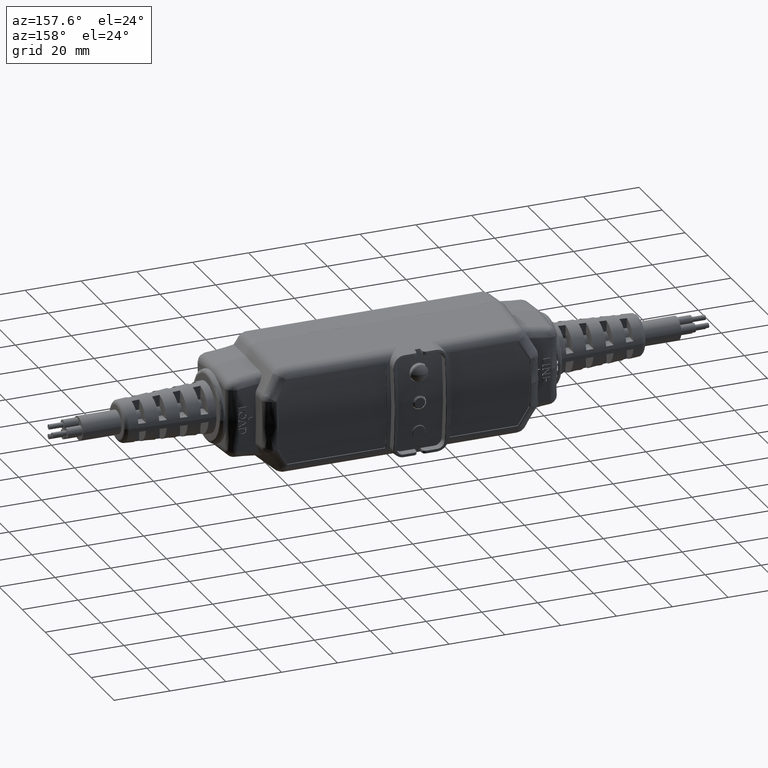
[diagram: clean part render]
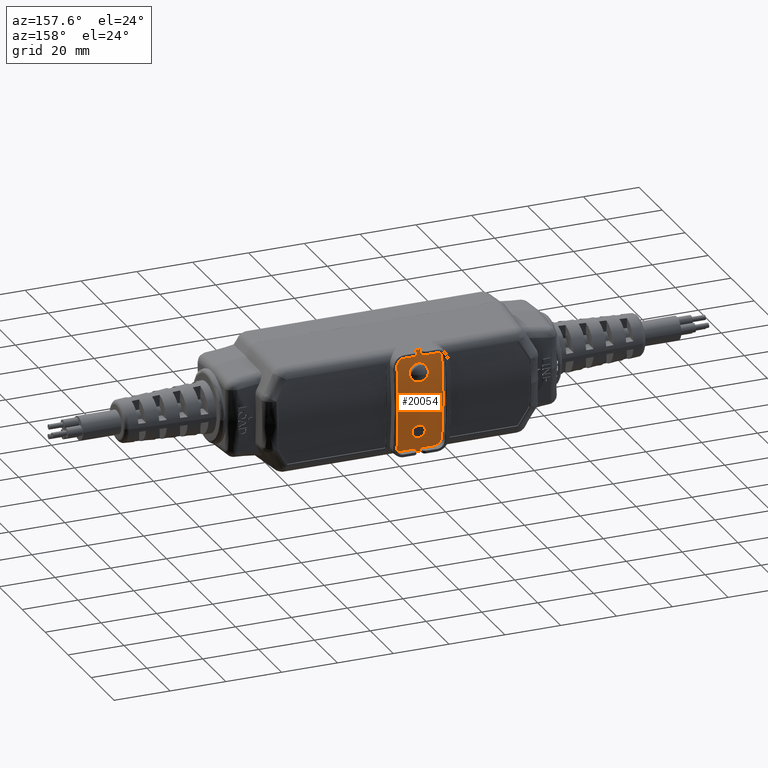
[diagram: same view with one face highlighted and labeled with its STEP entity id]
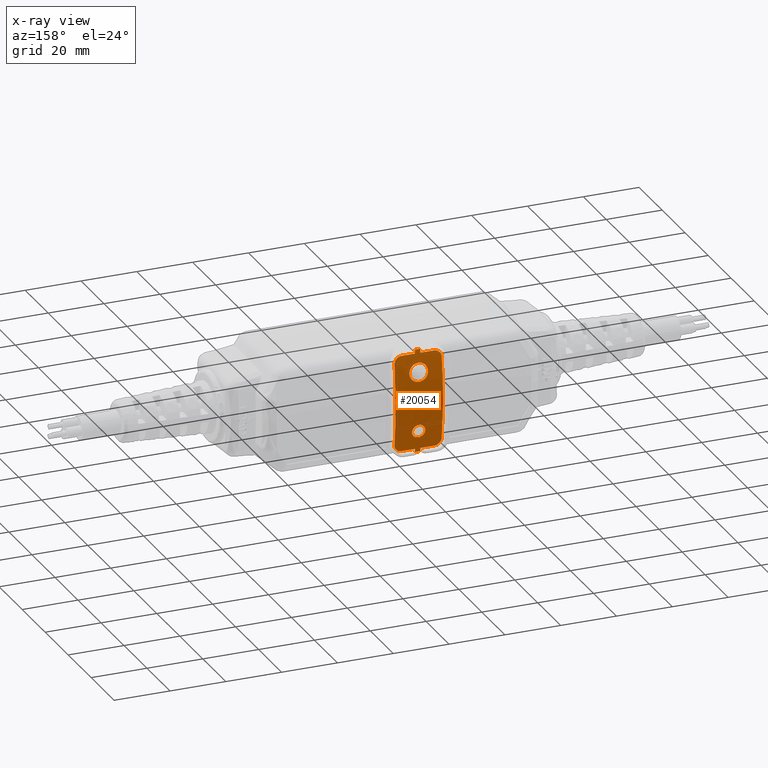
[diagram: x-ray of the same camera — body ghosted, the highlighted face saturated]
A machine part, auxiliary view. The second image highlights one B-rep face of the part: STEP entity #20054.
The next image is the same camera in x-ray: the body ghosted, the highlighted face saturated — about 0% of this face is hidden behind the body in this view.
In plain terms, the highlighted cylindrical surface (partial cylindrical patch) has radius 101.905 mm, axis along (1, 0, 0).
Its self-contained STEP definition (entity closure, byte-faithful):
#79 = CARTESIAN_POINT ( 'NONE',  ( -0.1154836130494746177, 0.9539396504030407398, -0.009960159207860776881 ) ) ;
#113 = CARTESIAN_POINT ( 'NONE',  ( -0.1173968639023321575, 0.9538952339751812781, -0.02215947921508732224 ) ) ;
#120 = CARTESIAN_POINT ( 'NONE',  ( -0.2519187773799420049, 0.8960431839282170241, -0.6792469370348928059 ) ) ;
#219 = CARTESIAN_POINT ( 'NONE',  ( -0.1926084021546554947, 0.9528838608003218358, 0.09251773454832948329 ) ) ;
#222 = VERTEX_POINT ( 'NONE', #17234 ) ;
#281 = VERTEX_POINT ( 'NONE', #8597 ) ;
#352 = CARTESIAN_POINT ( 'NONE',  ( -0.2576344120925420644, 0.9531506398265434665, 0.08017670585720117205 ) ) ;
#734 = CARTESIAN_POINT ( 'NONE',  ( -0.1665445977037008640, 0.9430173023247465647, 0.2959726419128856922 ) ) ;
#767 = CARTESIAN_POINT ( 'NONE',  ( 0.1132159286109416380, 0.9051163058353444146, 0.6240539421464571523 ) ) ;
#773 = CARTESIAN_POINT ( 'NONE',  ( -0.1711609754563061525, 0.8950936432270306664, -0.6847520753777464053 ) ) ;
#918 = CARTESIAN_POINT ( 'NONE',  ( -1.818259179320533825, 0.8960431839371066909, 0.6791432933898228219 ) ) ;
#1019 = VECTOR ( 'NONE', #6527, 39.37007874015748143 ) ;
#1029 = CARTESIAN_POINT ( 'NONE',  ( -0.4536931557577089658, 0.8960431839371065799, 0.6791432933898224888 ) ) ;
#1061 =( BOUNDED_CURVE ( )  B_SPLINE_CURVE ( 3, ( #17826, #6438, #11424, #4477 ),
 .UNSPECIFIED., .F., .T. ) 
 B_SPLINE_CURVE_WITH_KNOTS ( ( 4, 4 ),
 ( 3.313204749984747455, 3.324547274764896088 ),
 .UNSPECIFIED. ) 
 CURVE ( )  GEOMETRIC_REPRESENTATION_ITEM ( )  RATIONAL_B_SPLINE_CURVE ( ( 1.000000000000000000, 0.9999892789563695761, 0.9999892789563695761, 1.000000000000000000 ) ) 
 REPRESENTATION_ITEM ( '' )  );
#1073 = EDGE_LOOP ( 'NONE', ( #7870, #10032, #27421, #22953, #2247, #15036, #5419, #8390, #1538, #11323, #20646, #27460, #24671, #23181, #5750, #20337, #29905, #14526, #21155, #1989, #19933, #20483, #3428, #12738 ) ) ;
#1121 = CARTESIAN_POINT ( 'NONE',  ( -0.5410280097463324722, 0.9098673076678530647, -0.5933196936230159535 ) ) ;
#1191 = CARTESIAN_POINT ( 'NONE',  ( -0.2523335650721976742, 0.8960431839371066909, 0.6791432933898228219 ) ) ;
#1321 = CARTESIAN_POINT ( 'NONE',  ( -0.5410782126260693659, 0.9108252356782196024, 0.5866612514183660032 ) ) ;
#1337 = CARTESIAN_POINT ( 'NONE',  ( -0.3221190795961089148, 0.9245128741691092111, 0.4851324476555685661 ) ) ;
#1432 = CARTESIAN_POINT ( 'NONE',  ( -0.2659139072709787999, 0.9390403338658158683, -0.3456522934968553895 ) ) ;
#1461 = CARTESIAN_POINT ( 'NONE',  ( -0.2462880920562035836, 0.8950186068952701302, 0.6850813747908819362 ) ) ;
#1510 = EDGE_CURVE ( 'NONE', #26174, #21221, #18592, .T. ) ;
#1517 = EDGE_CURVE ( 'NONE', #15988, #25403, #24811, .T. ) ;
#1520 = CARTESIAN_POINT ( 'NONE',  ( -0.1711588021752691036, 0.8951351118990757971, 0.6844091667360099329 ) ) ;
#1538 = ORIENTED_EDGE ( 'NONE', *, *, #18887, .T. ) ;
#1799 = CARTESIAN_POINT ( 'NONE',  ( -0.1963391292436384439, 0.9210374646214920524, -0.5129099145910159807 ) ) ;
#1854 = VERTEX_POINT ( 'NONE', #2379 ) ;
#1989 = ORIENTED_EDGE ( 'NONE', *, *, #17952, .T. ) ;
#2116 = CARTESIAN_POINT ( 'NONE',  ( -0.2831276335409608769, 0.9254995162533091735, -0.4770407565800235949 ) ) ;
#2132 = CARTESIAN_POINT ( 'NONE',  ( -0.2458675061276717477, 0.8869933493040180750, -0.7299777425134753583 ) ) ;
#2177 = LINE ( 'NONE', #18081, #1019 ) ;
#2180 = CARTESIAN_POINT ( 'NONE',  ( -0.2767406377891598046, 0.9534307615286918836, 0.06478296091902921439 ) ) ;
#2236 = EDGE_CURVE ( 'NONE', #24272, #21424, #26165, .T. ) ;
#2247 = ORIENTED_EDGE ( 'NONE', *, *, #2236, .T. ) ;
#2258 = CARTESIAN_POINT ( 'NONE',  ( 0.1101344957712290101, 0.9042230165544270504, -0.6297986501896400968 ) ) ;
#2364 = CARTESIAN_POINT ( 'NONE',  ( -0.1763367240189061824, 0.9529826185358073465, -0.08825314356295890783 ) ) ;
#2379 = CARTESIAN_POINT ( 'NONE',  ( -0.1715857657125474389, 0.8869851289361383451, 0.7299185262661732621 ) ) ;
#2508 = VERTEX_POINT ( 'NONE', #10264 ) ;
#2513 = CARTESIAN_POINT ( 'NONE',  ( -0.1597458418419677728, 0.9531515460445185717, -0.08023502554024246336 ) ) ;
#2623 = CARTESIAN_POINT ( 'NONE',  ( -0.1170558476737795506, 0.9539030541514755823, 0.02059125206386703752 ) ) ;
#2937 = EDGE_CURVE ( 'NONE', #10393, #1854, #10969, .T. ) ;
#3022 = CARTESIAN_POINT ( 'NONE',  ( 0.09853809374190866666, 0.9016653271287193849, 0.6455756272855751599 ) ) ;
#3074 = CARTESIAN_POINT ( 'NONE',  ( -0.4727617166357491740, 0.8969127007127838391, -0.6741699997745085327 ) ) ;
#3085 = B_SPLINE_CURVE_WITH_KNOTS ( 'NONE', 3,
 ( #13989, #25661, #16248, #9616, #7326, #22935, #4894, #9464, #27656, #25821, #23369, #9173, #11558, #12020, #9009, #4750, #25220, #4604, #14280, #2364, #6875, #2513, #13840, #11725, #25508, #6727, #23074, #21249, #20954, #113, #18581, #23511 ),
 .UNSPECIFIED., .F., .F.,
 ( 4, 2, 2, 2, 2, 2, 2, 2, 2, 2, 2, 2, 2, 2, 2, 4 ),
 ( 0.000000000000000000, 0.0004653342316337972400, 0.0009306684632675944801, 0.001396002694901391557, 0.001861336926535188960, 0.002326671158168986363, 0.002792005389802783115, 0.003722673853070377053, 0.004188008084704174239, 0.004653342316337971858, 0.005118676547971768610, 0.005584010779605565362, 0.006049345011239362115, 0.006514679242873158867, 0.006980013474506955619, 0.007445347706140750636 ),
 .UNSPECIFIED. ) ;
#3123 = CARTESIAN_POINT ( 'NONE',  ( 0.1236754247445551735, 0.9117833399743843215, 0.5801052465378464529 ) ) ;
#3134 = CARTESIAN_POINT ( 'NONE',  ( -0.2257054483843428383, 0.9434467597720936904, 0.2900956803702320896 ) ) ;
#3168 = CARTESIAN_POINT ( 'NONE',  ( -0.1671084081286382250, 0.8959856229538940564, -0.6795819564820836378 ) ) ;
#3228 = CARTESIAN_POINT ( 'NONE',  ( -0.2462880920562035836, 0.8950186068952701302, 0.6850813747908819362 ) ) ;
#3267 = CARTESIAN_POINT ( 'NONE',  ( -0.1101312319667913098, 0.9400419601387237645, 0.3338001613084865538 ) ) ;
#3286 = VERTEX_POINT ( 'NONE', #22037 ) ;
#3304 = CARTESIAN_POINT ( 'NONE',  ( -0.1708028641598369757, 0.8953621260020852013, 0.6830963840579133972 ) ) ;
#3367 = LINE ( 'NONE', #9774, #5180 ) ;
#3395 = CARTESIAN_POINT ( 'NONE',  ( -0.2462880920557335707, 0.8950186068862996391, -0.6851850184359560281 ) ) ;
#3428 = ORIENTED_EDGE ( 'NONE', *, *, #17996, .T. ) ;
#3503 = CARTESIAN_POINT ( 'NONE',  ( -0.4906603366391942278, 0.8982718039977389823, -0.6661523811603804468 ) ) ;
#3549 = CARTESIAN_POINT ( 'NONE',  ( -0.5377494542356833218, 0.9079551004208802345, 0.6057562804194009942 ) ) ;
#3557 = CARTESIAN_POINT ( 'NONE',  ( -0.3358938742643788333, 0.9354014729419901641, 0.3856356985324602693 ) ) ;
#3571 = CARTESIAN_POINT ( 'NONE',  ( -0.1714408615519325274, 0.8897530983789124770, 0.7149584421105604770 ) ) ;
#3632 = CARTESIAN_POINT ( 'NONE',  ( -0.5067251030119757083, 0.9001679753405952278, -0.6547966033339280845 ) ) ;
#3650 = CARTESIAN_POINT ( 'NONE',  ( -0.1342445994597145642, 0.9375049821631987745, -0.3629923959223150254 ) ) ;
#3655 = FACE_BOUND ( 'NONE', #28659, .T. ) ;
#3709 = ORIENTED_EDGE ( 'NONE', *, *, #20545, .F. ) ;
#3856 = CARTESIAN_POINT ( 'NONE',  ( -0.5202818002771404382, 0.9025009735049854820, 0.6404358871883351068 ) ) ;
#3874 = CARTESIAN_POINT ( 'NONE',  ( -0.3392942749387863888, 0.9310124494228770864, 0.4284489150401615820 ) ) ;
#4010 = B_SPLINE_CURVE_WITH_KNOTS ( 'NONE', 3,
 ( #12259, #11961, #16954, #3168, #21635, #18811, #9558, #14518, #12401, #21497, #23462, #7858, #25901, #7413, #773, #9995 ),
 .UNSPECIFIED., .F., .F.,
 ( 4, 3, 3, 3, 3, 4 ),
 ( 5.204170427930421283E-18, 5.125242744472898192E-05, 0.0001024841627550694619, 0.0001540218007400006813, 0.0002059182782606578993, 0.0002391245057646051737 ),
 .UNSPECIFIED. ) ;
#4031 = CARTESIAN_POINT ( 'NONE',  ( -0.2458675061276717477, 0.8869933493040180750, -0.7299777425134753583 ) ) ;
#4046 = CARTESIAN_POINT ( 'NONE',  ( -0.2791870348293674642, 0.9249213646252359977, -0.4818369913283561679 ) ) ;
#4088 = CARTESIAN_POINT ( 'NONE',  ( -0.2458672342874492212, 0.8869851289361383451, 0.7299185262661732621 ) ) ;
#4191 = CARTESIAN_POINT ( 'NONE',  ( -0.2662604973767637162, 0.9233445082338710419, -0.4947558402851079951 ) ) ;
#4195 = CARTESIAN_POINT ( 'NONE',  ( 0.07333268905540553384, 0.8982834780347658254, -0.6660831880158553098 ) ) ;
#4343 = CARTESIAN_POINT ( 'NONE',  ( -0.1915705656434956439, 0.9161313295368385123, 0.5495340034247787608 ) ) ;
#4351 = CARTESIAN_POINT ( 'NONE',  ( -0.2899194916686552159, 0.9267029577303121934, -0.4668805513599915136 ) ) ;
#4426 = CARTESIAN_POINT ( 'NONE',  ( -0.2049048096649276063, 0.9528533019814567906, 0.09383247143433832982 ) ) ;
#4477 = CARTESIAN_POINT ( 'NONE',  ( -0.2458675061276716645, 0.8869933493040180750, 0.7298740989201616403 ) ) ;
#4524 = CARTESIAN_POINT ( 'NONE',  ( -0.2458672342874493044, 0.8869851289361383451, -0.7300221698594887565 ) ) ;
#4604 = CARTESIAN_POINT ( 'NONE',  ( -0.1941192482729313662, 0.9528781406896782435, -0.09286822871559809178 ) ) ;
#4750 = CARTESIAN_POINT ( 'NONE',  ( -0.2125705085255152060, 0.9528534261247358916, -0.09393074041920219941 ) ) ;
#4825 = EDGE_CURVE ( 'NONE', #26120, #9846, #3085, .T. ) ;
#4861 = CARTESIAN_POINT ( 'NONE',  ( -0.2467860716767581453, 0.9530330597294728312, 0.08585438928384410417 ) ) ;
#4894 = CARTESIAN_POINT ( 'NONE',  ( -0.2946082307376566845, 0.9537743430229623787, -0.03818337036254906142 ) ) ;
#5112 = CARTESIAN_POINT ( 'NONE',  ( 0.03612768280966051349, 0.8961541860935122727, 0.6784979590845440223 ) ) ;
#5180 = VECTOR ( 'NONE', #14733, 39.37007874015748143 ) ;
#5236 = CARTESIAN_POINT ( 'NONE',  ( -0.3126152718288996990, 0.9394975336576847358, 0.3402770625234010082 ) ) ;
#5271 = CARTESIAN_POINT ( 'NONE',  ( 0.08410953624006563267, 0.8994740667084760721, 0.6588680807179038146 ) ) ;
#5419 = ORIENTED_EDGE ( 'NONE', *, *, #27501, .T. ) ;
#5504 = CARTESIAN_POINT ( 'NONE',  ( -0.5411284247445529161, 0.9117833399743843215, 0.5801052465378464529 ) ) ;
#5615 = CARTESIAN_POINT ( 'NONE',  ( -0.2330277945348349367, 0.9404107222768419705, -0.3294032641567825603 ) ) ;
#5621 = FACE_BOUND ( 'NONE', #6140, .T. ) ;
#5663 = CARTESIAN_POINT ( 'NONE',  ( -0.5306908917545770654, 0.9051222063155310860, 0.6240168948053265163 ) ) ;
#5671 = CARTESIAN_POINT ( 'NONE',  ( -0.08228940805898961319, 0.9353318618082187008, 0.3861230101145399773 ) ) ;
#5689 = CARTESIAN_POINT ( 'NONE',  ( -0.1715857280873663848, 0.8869878691831974971, -0.7300073605377527253 ) ) ;
#5715 = CARTESIAN_POINT ( 'NONE',  ( -0.1651194349277994022, 0.8960431839371066909, 0.6791432933898228219 ) ) ;
#5750 = ORIENTED_EDGE ( 'NONE', *, *, #21171, .T. ) ;
#5829 = CARTESIAN_POINT ( 'NONE',  ( -0.3071120291879399500, 0.9400611482873536540, 0.3335689852884480833 ) ) ;
#5934 = CARTESIAN_POINT ( 'NONE',  ( -0.1844383466892329237, 0.9404109884033490241, -0.3294000280388857949 ) ) ;
#5961 = CARTESIAN_POINT ( 'NONE',  ( -0.2462920245441604650, 0.8950936432359954953, 0.6846484317326728686 ) ) ;
#6024 = CARTESIAN_POINT ( 'NONE',  ( -0.1655342226195897215, 0.8960431839371106877, 0.6791432933898093882 ) ) ;
#6102 = VERTEX_POINT ( 'NONE', #4031 ) ;
#6140 = EDGE_LOOP ( 'NONE', ( #26911, #20240 ) ) ;
#6146 = CARTESIAN_POINT ( 'NONE',  ( -0.2998170978688118327, 0.9292608746291112221, -0.4446186739958048473 ) ) ;
#6253 = VERTEX_POINT ( 'NONE', #23395 ) ;
#6271 = CARTESIAN_POINT ( 'NONE',  ( -0.2462941978242584595, 0.8951351118901144099, -0.6845128103810835807 ) ) ;
#6303 = CARTESIAN_POINT ( 'NONE',  ( -0.1181575633173396894, 0.9292879342295562450, -0.4442718927964963704 ) ) ;
#6438 = CARTESIAN_POINT ( 'NONE',  ( -0.2461523352606320159, 0.8924282129226828175, 0.7000273739908338122 ) ) ;
#6451 = CARTESIAN_POINT ( 'NONE',  ( -0.3261382649297429048, 0.9254268064620915224, 0.4775817452492040482 ) ) ;
#6464 = CARTESIAN_POINT ( 'NONE',  ( 0.1229277247758765457, 0.9098676199553984434, -0.5932041477088827452 ) ) ;
#6527 = DIRECTION ( 'NONE',  ( -1.000000000000000000, -6.668185433380451414E-18, -1.387778780781445367E-17 ) ) ;
#6550 = CARTESIAN_POINT ( 'NONE',  ( -0.1711649079437941035, 0.8950186068952701302, 0.6850813747908819362 ) ) ;
#6607 = CARTESIAN_POINT ( 'NONE',  ( -0.1711649079442644217, 0.8950186068862996391, -0.6851850184359560281 ) ) ;
#6615 = CARTESIAN_POINT ( 'NONE',  ( 0.1202964542352730343, 0.9079551004129540193, -0.6058599240646115325 ) ) ;
#6622 = CARTESIAN_POINT ( 'NONE',  ( -0.1715854938723260226, 0.8869933493040180750, -0.7299777425134769127 ) ) ;
#6700 = CARTESIAN_POINT ( 'NONE',  ( -1.818259179320535823, -3.058048114390085725, -5.182179665741830805E-05 ) ) ;
#6727 = CARTESIAN_POINT ( 'NONE',  ( -0.1328066164169856567, 0.9535725949679588753, -0.05541685599204736884 ) ) ;
#6757 = CARTESIAN_POINT ( 'NONE',  ( -0.08482735254520680501, 0.9272752221838239661, 0.4619050920785663372 ) ) ;
#6765 = CARTESIAN_POINT ( 'NONE',  ( -0.1614419143839994353, 0.9224763458132896332, -0.5016410104374466883 ) ) ;
#6773 = CARTESIAN_POINT ( 'NONE',  ( -0.1713006647396894677, 0.8924282129165058697, -0.7001310176186216205 ) ) ;
#6875 = CARTESIAN_POINT ( 'NONE',  ( -0.1705663967562495720, 0.9530340334576167249, -0.08591255351224015568 ) ) ;
#6994 = CARTESIAN_POINT ( 'NONE',  ( -0.1148368939212714712, 0.9539546777822835999, -0.003875418735483466062 ) ) ;
#7053 = CARTESIAN_POINT ( 'NONE',  ( -0.2173976619817522271, 0.9160135592921394565, 0.5503823829701648407 ) ) ;
#7131 = CARTESIAN_POINT ( 'NONE',  ( -0.2232184387478485244, 0.9528777564030999070, 0.09278114162650716312 ) ) ;
#7215 = VERTEX_POINT ( 'NONE', #5504 ) ;
#7326 = CARTESIAN_POINT ( 'NONE',  ( -0.3003901957856230376, 0.9539028882625444350, -0.02073730038079591234 ) ) ;
#7413 = CARTESIAN_POINT ( 'NONE',  ( -0.1711088267320390044, 0.8951689675716474337, -0.6843170381325319740 ) ) ;
#7516 = CARTESIAN_POINT ( 'NONE',  ( -0.1506646899669771833, 0.9425234954329758663, 0.3025729402828452042 ) ) ;
#7551 = DIRECTION ( 'NONE',  ( 1.000000000000000000, 6.668185433380451414E-18, 1.387778780781445367E-17 ) ) ;
#7858 = CARTESIAN_POINT ( 'NONE',  ( -0.1708578945626010870, 0.8953550977873167005, -0.6832410214331526843 ) ) ;
#7870 = ORIENTED_EDGE ( 'NONE', *, *, #26731, .T. ) ;
#7913 = CARTESIAN_POINT ( 'NONE',  ( -0.2906052386649180530, 0.9365903828097037476, -0.3730601662387951212 ) ) ;
#7964 = CARTESIAN_POINT ( 'NONE',  ( -0.1289147869559738868, 0.9414748628630872362, 0.3161484108750373667 ) ) ;
#8099 = CARTESIAN_POINT ( 'NONE',  ( -0.2665890138462218006, 0.9425304906033259433, 0.3024800400223076058 ) ) ;
#8144 = CARTESIAN_POINT ( 'NONE',  ( -0.1693635759380333339, 0.8957549132274906789, 0.6808196043220274829 ) ) ;
#8236 = CARTESIAN_POINT ( 'NONE',  ( -0.2463441732684276686, 0.8951689675806058233, 0.6842133944874575491 ) ) ;
#8268 = CARTESIAN_POINT ( 'NONE',  ( -0.2951875816946514242, 0.9203648712877339211, 0.5180321091126196542 ) ) ;
#8371 = CARTESIAN_POINT ( 'NONE',  ( -0.3023076798712333590, 0.9325485025370491288, -0.4139602172061352947 ) ) ;
#8390 = ORIENTED_EDGE ( 'NONE', *, *, #27164, .T. ) ;
#8436 = CARTESIAN_POINT ( 'NONE',  ( -0.2509735899579410012, 0.9169404194385503137, 0.5436587200040551293 ) ) ;
#8588 = CARTESIAN_POINT ( 'NONE',  ( -0.2884881396299117107, 0.9196407483954153195, 0.5235494991073386117 ) ) ;
#8597 = CARTESIAN_POINT ( 'NONE',  ( -0.5411284247441544570, 0.9117833399667918393, -0.5802088901831036205 ) ) ;
#8648 = CARTESIAN_POINT ( 'NONE',  ( -0.2458672719126302475, 0.8869878691831977191, 0.7299037169444376749 ) ) ;
#8712 = CARTESIAN_POINT ( 'NONE',  ( -0.2458672342874493044, 0.8869851289361383451, -0.7300221698594887565 ) ) ;
#8860 = CARTESIAN_POINT ( 'NONE',  ( -0.2458675061276717477, 0.8869933493040180750, -0.7299777425134753583 ) ) ;
#8911 = CARTESIAN_POINT ( 'NONE',  ( -0.1381173158103271292, 0.9249411945232481891, -0.4816734953025036958 ) ) ;
#8951 = CARTESIAN_POINT ( 'NONE',  ( -0.2458673625322277123, 0.8869906093397319502, 0.7298889076458302538 ) ) ;
#9009 = CARTESIAN_POINT ( 'NONE',  ( -0.2308127363612409999, 0.9528985561197128584, -0.09198920586852257775 ) ) ;
#9053 = CARTESIAN_POINT ( 'NONE',  ( -0.2927878669212553020, 0.9273277451798955795, -0.4615227558257925522 ) ) ;
#9136 = CARTESIAN_POINT ( 'NONE',  ( -0.2881214756162771007, 0.9536406935071661817, 0.05020407470101329039 ) ) ;
#9173 = CARTESIAN_POINT ( 'NONE',  ( -0.2640345726708178131, 0.9532346361488718278, -0.07601420490063742763 ) ) ;
#9205 = CARTESIAN_POINT ( 'NONE',  ( -0.1289980940984232494, 0.9196375711831037414, 0.5235735295412458079 ) ) ;
#9218 = CARTESIAN_POINT ( 'NONE',  ( 0.1236754247441572835, 0.9117833399667918393, -0.5802088901831019552 ) ) ;
#9251 = CARTESIAN_POINT ( 'NONE',  ( -0.2458675061276716645, 0.8869933493040180750, 0.7298740989201616403 ) ) ;
#9287 = CARTESIAN_POINT ( 'NONE',  ( -0.1439656764549163970, 0.9533761077286569963, 0.06803004611211810326 ) ) ;
#9435 = CARTESIAN_POINT ( 'NONE',  ( -0.1866202859667512870, 0.9529128583733246227, 0.09126844824185335880 ) ) ;
#9464 = CARTESIAN_POINT ( 'NONE',  ( -0.2889144571137912121, 0.9536565182347052083, -0.04903534327574493590 ) ) ;
#9558 = CARTESIAN_POINT ( 'NONE',  ( -0.1688729690831563268, 0.8958199039382110929, -0.6805455349495933559 ) ) ;
#9616 = CARTESIAN_POINT ( 'NONE',  ( -0.3015559826664724885, 0.9539300275699095222, -0.01462587758516557812 ) ) ;
#9774 = CARTESIAN_POINT ( 'NONE',  ( -1.818259179320534047, 0.8960431839282149147, -0.6792469370349070168 ) ) ;
#9821 = B_SPLINE_CURVE_WITH_KNOTS ( 'NONE', 3,
 ( #17019, #8371, #17632, #12611, #22137, #7913, #12902, #17166, #1432, #10363, #26874, #10658, #5615, #21555, #15306, #17476, #24558, #5934, #26278, #26414, #26723, #14873, #29170, #10061, #3650, #19587, #24113, #19890, #23959, #12320 ),
 .UNSPECIFIED., .F., .F.,
 ( 4, 2, 2, 2, 2, 2, 2, 2, 2, 2, 2, 2, 2, 2, 4 ),
 ( 0.0002522452650613777486, 0.0007180730828193979945, 0.001183900900577418295, 0.002115556536093459762, 0.002581384353851479303, 0.003047212171609499278, 0.003513039989367518819, 0.003978867807125538794, 0.004444695624883558335, 0.004910523442641578744, 0.005376351260399599152, 0.005842179078157619561, 0.006308006895915639102, 0.006773834713673659511, 0.007705490349189698593 ),
 .UNSPECIFIED. ) ;
#9846 = VERTEX_POINT ( 'NONE', #26453 ) ;
#9855 = CARTESIAN_POINT ( 'NONE',  ( 0.06744880264490087096, 0.8977575180293781987, 0.6690910369396327884 ) ) ;
#9875 = EDGE_CURVE ( 'NONE', #7215, #14928, #19542, .T. ) ;
#9988 = CARTESIAN_POINT ( 'NONE',  ( 0.1235750097467421954, 0.9098673076756176314, 0.5932160499777814344 ) ) ;
#9995 = CARTESIAN_POINT ( 'NONE',  ( -0.1711649079442644217, 0.8950186068862996391, -0.6851850184359560281 ) ) ;
#10032 = ORIENTED_EDGE ( 'NONE', *, *, #2937, .T. ) ;
#10061 = CARTESIAN_POINT ( 'NONE',  ( -0.1381099974219637538, 0.9379301559011385958, -0.3582704468589810176 ) ) ;
#10095 = CARTESIAN_POINT ( 'NONE',  ( -0.5440802360594257925, 0.9681072551498571821, -0.1948021403384016526 ) ) ;
#10113 = CARTESIAN_POINT ( 'NONE',  ( -0.3393176867286014642, 0.9336951748149023844, 0.4029633087710364214 ) ) ;
#10264 = CARTESIAN_POINT ( 'NONE',  ( -0.3393020839530980215, 0.9319072738316924731, 0.4199481782033424593 ) ) ;
#10305 = CARTESIAN_POINT ( 'NONE',  ( -0.1659512215128804702, 0.8960357926533913941, 0.6791863274637078840 ) ) ;
#10329 = EDGE_CURVE ( 'NONE', #25486, #281, #17336, .T. ) ;
#10351 = B_SPLINE_CURVE_WITH_KNOTS ( 'NONE', 3,
 ( #9218, #18622, #6464, #6615, #20413, #27846, #2258, #22821, #29700, #16294, #15852, #4195, #29531, #18169, #27702, #27405 ),
 .UNSPECIFIED., .F., .F.,
 ( 4, 2, 2, 2, 2, 2, 2, 4 ),
 ( 8.770652787438942800E-18, 0.0004976877255181421126, 0.0009953754510362753348, 0.001493063176554408665, 0.001990750902072541996, 0.002488438627590675543, 0.002986126353108808223, 0.003981501804145070114 ),
 .UNSPECIFIED. ) ;
#10363 = CARTESIAN_POINT ( 'NONE',  ( -0.2557194369830312342, 0.9396250362643117082, -0.3388218466765359760 ) ) ;
#10393 = VERTEX_POINT ( 'NONE', #13801 ) ;
#10395 = CARTESIAN_POINT ( 'NONE',  ( -0.2480894240614988921, 0.8957549132185763652, -0.6809232479671043503 ) ) ;
#10418 = CARTESIAN_POINT ( 'NONE',  ( -0.1715854938723259393, 0.8869933493040180750, 0.7298740989201616403 ) ) ;
#10431 = LINE ( 'NONE', #918, #23197 ) ;
#10526 = CARTESIAN_POINT ( 'NONE',  ( -0.5411284247445529161, 0.9117833399743843215, 0.5801052465378464529 ) ) ;
#10551 = VERTEX_POINT ( 'NONE', #28518 ) ;
#10658 = CARTESIAN_POINT ( 'NONE',  ( -0.2389985267514251888, 0.9402612990525281988, -0.3312185975450179787 ) ) ;
#10722 = CARTESIAN_POINT ( 'NONE',  ( -0.3071950039187604786, 0.9219143187268696860, 0.5059915311426681495 ) ) ;
#10841 = CARTESIAN_POINT ( 'NONE',  ( -0.2509791153110408901, 0.8960234113740793704, 0.6792584305308346782 ) ) ;
#10882 = CARTESIAN_POINT ( 'NONE',  ( -0.1157675850606964124, 0.9306030024876612572, -0.4323046458831004690 ) ) ;
#10969 = LINE ( 'NONE', #27484, #27724 ) ;
#11025 = CARTESIAN_POINT ( 'NONE',  ( -0.3023020839530980997, 0.9319072738316921400, -0.4200518217966618395 ) ) ;
#11137 = CARTESIAN_POINT ( 'NONE',  ( -0.2465951054378646423, 0.8953550977962607682, 0.6831373777880767051 ) ) ;
#11173 = CARTESIAN_POINT ( 'NONE',  ( -0.1342643143729735089, 0.9255093637382001415, -0.4769583040899494364 ) ) ;
#11255 = CARTESIAN_POINT ( 'NONE',  ( -0.1222346588225956543, 0.9537869723620790996, 0.03816463729976486002 ) ) ;
#11319 = CARTESIAN_POINT ( 'NONE',  ( -0.07898699425631623694, 0.9300961420942899238, 0.4368933586737257513 ) ) ;
#11323 = ORIENTED_EDGE ( 'NONE', *, *, #22732, .T. ) ;
#11424 = CARTESIAN_POINT ( 'NONE',  ( -0.2460121384480652151, 0.8897530983789123660, 0.7149584421105594778 ) ) ;
#11495 = EDGE_CURVE ( 'NONE', #21221, #15988, #24488, .T. ) ;
#11524 = EDGE_CURVE ( 'NONE', #10551, #24272, #18220, .T. ) ;
#11558 = CARTESIAN_POINT ( 'NONE',  ( -0.2589143937036470500, 0.9531665287492055993, -0.07948487536074688720 ) ) ;
#11566 = CARTESIAN_POINT ( 'NONE',  ( -0.2523335650717296041, 0.8960431839282149147, -0.6792469370349052404 ) ) ;
#11595 = CARTESIAN_POINT ( 'NONE',  ( -0.2258969431158844021, 0.9161315348313652240, 0.5495325271779613052 ) ) ;
#11725 = CARTESIAN_POINT ( 'NONE',  ( -0.1449981979278381350, 0.9533594513382248614, -0.06910587836892757851 ) ) ;
#11901 = CARTESIAN_POINT ( 'NONE',  ( -0.07815091604689879123, 0.9319072738316922511, 0.4199481782033424038 ) ) ;
#11907 = EDGE_LOOP ( 'NONE', ( #14932, #3709 ) ) ;
#11920 = CARTESIAN_POINT ( 'NONE',  ( -0.1715856374679134155, 0.8869906093397262881, 0.7298889076458534575 ) ) ;
#11961 = CARTESIAN_POINT ( 'NONE',  ( -0.1657920389629751190, 0.8960431839282149147, -0.6792469370349071278 ) ) ;
#12020 = CARTESIAN_POINT ( 'NONE',  ( -0.2428233549858237195, 0.9529867498290802708, -0.08824145470602810792 ) ) ;
#12242 = CARTESIAN_POINT ( 'NONE',  ( -0.1715857657125474944, 0.8869851289361383451, -0.7300221698594887565 ) ) ;
#12254 = CARTESIAN_POINT ( 'NONE',  ( 0.1027023504834644885, 0.9024741320290355917, 0.6406020845067242897 ) ) ;
#12259 = CARTESIAN_POINT ( 'NONE',  ( -0.1651194349282673612, 0.8960431839282149147, -0.6792469370349070168 ) ) ;
#12320 = CARTESIAN_POINT ( 'NONE',  ( -0.1151509160468988241, 0.9319072738316921400, -0.4200518217966618395 ) ) ;
#12400 = CARTESIAN_POINT ( 'NONE',  ( -0.1697947744096745815, 0.8956650265219453511, 0.6813411627427500283 ) ) ;
#12401 = CARTESIAN_POINT ( 'NONE',  ( -0.1698651896183760446, 0.8956603523645584319, -0.6814721673925523415 ) ) ;
#12433 =( BOUNDED_CURVE ( )  B_SPLINE_CURVE ( 3, ( #3123, #20997, #26168, #21297 ),
 .UNSPECIFIED., .F., .T. ) 
 B_SPLINE_CURVE_WITH_KNOTS ( ( 4, 4 ),
 ( 6.138071086574100832, 6.428299527798155388 ),
 .UNSPECIFIED. ) 
 CURVE ( )  GEOMETRIC_REPRESENTATION_ITEM ( )  RATIONAL_B_SPLINE_CURVE ( ( 1.000000000000000000, 0.9929929302693043525, 0.9929929302693043525, 1.000000000000000000 ) ) 
 REPRESENTATION_ITEM ( '' )  );
#12504 = CARTESIAN_POINT ( 'NONE',  ( -0.5403807247762801858, 0.9098676199631586803, 0.5931005040636491144 ) ) ;
#12611 = CARTESIAN_POINT ( 'NONE',  ( -0.2993515932768911481, 0.9343841781022359516, -0.3958611336520742596 ) ) ;
#12647 = CARTESIAN_POINT ( 'NONE',  ( -0.2468818118932101235, 0.8954713881378970619, -0.6825677226215535187 ) ) ;
#12663 = CARTESIAN_POINT ( 'NONE',  ( -0.2508423906107348778, 0.9430185436962776890, 0.2959554411147529707 ) ) ;
#12738 = ORIENTED_EDGE ( 'NONE', *, *, #29681, .T. ) ;
#12802 = CARTESIAN_POINT ( 'NONE',  ( -0.4668550811580288173, 0.8964996582162614303, 0.6764991060584861771 ) ) ;
#12902 = CARTESIAN_POINT ( 'NONE',  ( -0.2836511756696136199, 0.9375470156832949042, -0.3625970287470804410 ) ) ;
#12978 = CARTESIAN_POINT ( 'NONE',  ( -0.1151509160468988241, 0.9319072738316921400, -0.4200518217966618395 ) ) ;
#13073 = FACE_OUTER_BOUND ( 'NONE', #1073, .T. ) ;
#13112 = CARTESIAN_POINT ( 'NONE',  ( -0.5160371244696265736, 0.9016737132614556227, 0.6455242238722006531 ) ) ;
#13122 = VERTEX_POINT ( 'NONE', #11901 ) ;
#13129 = CARTESIAN_POINT ( 'NONE',  ( -0.3326245375072858779, 0.9272748683940468251, 0.4619081248651674132 ) ) ;
#13250 = CARTESIAN_POINT ( 'NONE',  ( -0.2516609610374898054, 0.8960431839371066909, 0.6791432933898228219 ) ) ;
#13555 = CARTESIAN_POINT ( 'NONE',  ( -0.2523335650721976742, 0.8960431839371066909, 0.6791432933898228219 ) ) ;
#13586 = CARTESIAN_POINT ( 'NONE',  ( -0.1665500626470431955, 0.9169368289291681684, 0.5436850293698498593 ) ) ;
#13597 = CARTESIAN_POINT ( 'NONE',  ( -0.1511535882459939251, 0.9233459264781179732, -0.4947462492699481462 ) ) ;
#13616 = CARTESIAN_POINT ( 'NONE',  ( -0.2462880920557335707, 0.8950186068862996391, -0.6851850184359560281 ) ) ;
#13627 = CARTESIAN_POINT ( 'NONE',  ( -0.2458672719126302475, 0.8869878691831948325, -0.7300073605377648267 ) ) ;
#13675 = CARTESIAN_POINT ( 'NONE',  ( -0.2723821196605872852, 0.9533583589967848937, 0.06906320604062267388 ) ) ;
#13801 = CARTESIAN_POINT ( 'NONE',  ( -0.2458672342874492212, 0.8869851289361383451, 0.7299185262661732621 ) ) ;
#13840 = CARTESIAN_POINT ( 'NONE',  ( -0.1546276344580377327, 0.9532180548569304523, -0.07688176755859753297 ) ) ;
#13989 = CARTESIAN_POINT ( 'NONE',  ( -0.3019728884648323342, 0.9539397317669099374, 0.009823515592403646648 ) ) ;
#14240 = EDGE_CURVE ( 'NONE', #27629, #15076, #19832, .T. ) ;
#14280 = CARTESIAN_POINT ( 'NONE',  ( -0.1881203936519900421, 0.9529047875863291273, -0.09172423730058544555 ) ) ;
#14363 = B_SPLINE_CURVE_WITH_KNOTS ( 'NONE', 3,
 ( #9251, #8951, #8648, #4088 ),
 .UNSPECIFIED., .F., .F.,
 ( 4, 4 ),
 ( 0.000000000000000000, 1.132349285708903366E-06 ),
 .UNSPECIFIED. ) ;
#14480 = CARTESIAN_POINT ( 'NONE',  ( -0.3261036170175907745, 0.9375903740026505506, 0.3619974670435451847 ) ) ;
#14518 = CARTESIAN_POINT ( 'NONE',  ( -0.1694017403626865703, 0.8957483513013039245, -0.6809612767517962961 ) ) ;
#14526 = ORIENTED_EDGE ( 'NONE', *, *, #17743, .T. ) ;
#14561 = CARTESIAN_POINT ( 'NONE',  ( -0.5382741669596775580, 0.9078984046108073969, -0.6063167092310618456 ) ) ;
#14636 = CARTESIAN_POINT ( 'NONE',  ( -0.1914477134898624477, 0.9434436817675457831, 0.2901381730549155713 ) ) ;
#14668 = CARTESIAN_POINT ( 'NONE',  ( 0.1208211669600935817, 0.9078984046187402734, 0.6062130655858511963 ) ) ;
#14733 = DIRECTION ( 'NONE',  ( -1.000000000000000000, -6.668185433380451414E-18, -1.387778780781445367E-17 ) ) ;
#14873 = CARTESIAN_POINT ( 'NONE',  ( -0.1515605714886844313, 0.9390416683578235446, -0.3456367833850472193 ) ) ;
#14918 = CARTESIAN_POINT ( 'NONE',  ( -0.07815091604689879123, 0.9319072738316922511, 0.4199481782033424038 ) ) ;
#14928 = VERTEX_POINT ( 'NONE', #26907 ) ;
#14932 = ORIENTED_EDGE ( 'NONE', *, *, #16622, .F. ) ;
#14959 = CARTESIAN_POINT ( 'NONE',  ( -0.1705711881063195212, 0.8954713881468334691, 0.6824640789764778726 ) ) ;
#15036 = ORIENTED_EDGE ( 'NONE', *, *, #17282, .T. ) ;
#15076 = VERTEX_POINT ( 'NONE', #20330 ) ;
#15209 = CARTESIAN_POINT ( 'NONE',  ( -0.5411284247445529161, 0.9117833399743843215, 0.5801052465378464529 ) ) ;
#15306 = CARTESIAN_POINT ( 'NONE',  ( -0.2149354906041107960, 0.9406566821130140088, -0.3264012517409819458 ) ) ;
#15402 = CARTESIAN_POINT ( 'NONE',  ( -0.1702256891056138921, 0.8955751989716722594, 0.6818623779210526425 ) ) ;
#15501 = CARTESIAN_POINT ( 'NONE',  ( -0.2464184466852374911, 0.8952528576697716955, -0.6838323685403353558 ) ) ;
#15538 = CARTESIAN_POINT ( 'NONE',  ( -0.1843421414846727890, 0.9213465480996081425, -0.5105061180770438245 ) ) ;
#15661 = B_SPLINE_CURVE_WITH_KNOTS ( 'NONE', 3,
 ( #14918, #28767, #26177, #5671, #24156, #28900, #26017, #16755, #3267, #19629, #7964, #28314, #7516, #734, #17213, #14636, #24003, #17067, #3134, #26319, #12663, #8099, #21890, #26606, #21595, #5829, #5236, #24309, #14480, #3557, #10113, #19349 ),
 .UNSPECIFIED., .F., .F.,
 ( 4, 2, 2, 2, 2, 2, 2, 2, 2, 2, 2, 2, 2, 2, 2, 4 ),
 ( 0.01075409868786848626, 0.01140352324396114343, 0.01205294780005380061, 0.01270237235614645778, 0.01335179691223911495, 0.01400122146833176692, 0.01465064602442442063, 0.01530007058051707433, 0.01594949513660972804, 0.01659891969270237827, 0.01724834424879503197, 0.01789776880488768221, 0.01854719336098033244, 0.01919661791707298268, 0.01984604247316563291, 0.02114489158535092991 ),
 .UNSPECIFIED. ) ;
#15836 = CARTESIAN_POINT ( 'NONE',  ( -0.09131426699284811432, 0.9254269022906363995, 0.4775809647645695710 ) ) ;
#15852 = CARTESIAN_POINT ( 'NONE',  ( 0.08427501249959780394, 0.8994945222669826768, -0.6588490053426979687 ) ) ;
#15859 = CARTESIAN_POINT ( 'NONE',  ( -1.818259179320534047, 0.8869851289361383451, -0.7300221698594889785 ) ) ;
#15930 = VERTEX_POINT ( 'NONE', #18539 ) ;
#15988 = VERTEX_POINT ( 'NONE', #18672 ) ;
#16219 = CARTESIAN_POINT ( 'NONE',  ( -0.1749531409578040375, 0.9529941126557489595, 0.08762696472722986130 ) ) ;
#16248 = CARTESIAN_POINT ( 'NONE',  ( -0.3026624811390502545, 0.9539557770740750842, -0.002457968785324953116 ) ) ;
#16294 = CARTESIAN_POINT ( 'NONE',  ( 0.08932154094343924822, 0.9001750263252152884, -0.6547540070896340492 ) ) ;
#16306 = CARTESIAN_POINT ( 'NONE',  ( -0.1715854938723260226, 0.8869933493040180750, -0.7299777425134769127 ) ) ;
#16318 =( BOUNDED_CURVE ( )  B_SPLINE_CURVE ( 3, ( #8860, #18109, #27647, #20640 ),
 .UNSPECIFIED., .F., .T. ) 
 B_SPLINE_CURVE_WITH_KNOTS ( ( 4, 4 ),
 ( 2.958638032414690144, 2.969980557181745695 ),
 .UNSPECIFIED. ) 
 CURVE ( )  GEOMETRIC_REPRESENTATION_ITEM ( )  RATIONAL_B_SPLINE_CURVE ( ( 1.000000000000000000, 0.9999892789563943341, 0.9999892789563943341, 1.000000000000000000 ) ) 
 REPRESENTATION_ITEM ( '' )  );
#16363 = CARTESIAN_POINT ( 'NONE',  ( -0.2293175265375627103, 0.9529046932549969373, 0.09162478027602233288 ) ) ;
#16457 = VERTEX_POINT ( 'NONE', #1191 ) ;
#16620 = ORIENTED_EDGE ( 'NONE', *, *, #4825, .T. ) ;
#16622 = EDGE_CURVE ( 'NONE', #2508, #13122, #25557, .T. ) ;
#16642 = CARTESIAN_POINT ( 'NONE',  ( 0.02298756464561562199, 0.8960431839371066909, 0.6791432933898228219 ) ) ;
#16755 = CARTESIAN_POINT ( 'NONE',  ( -0.1047488889570969833, 0.9394872456834575392, 0.3403972991823418504 ) ) ;
#16788 = CARTESIAN_POINT ( 'NONE',  ( 0.07320733663962016025, 0.8982718040064586740, 0.6660487375152779332 ) ) ;
#16878 = B_SPLINE_CURVE_WITH_KNOTS ( 'NONE', 3,
 ( #13555, #13250, #10841, #17961, #24904, #20070, #26751, #22165, #29040, #17508, #22474, #11137, #20218, #8236, #5961, #1461 ),
 .UNSPECIFIED., .F., .F.,
 ( 4, 3, 3, 3, 3, 4 ),
 ( 0.000000000000000000, 5.125242744474397779E-05, 0.0001024841627550883677, 0.0001540218007400217962, 0.0002059182782605914106, 0.0002391245057645176514 ),
 .UNSPECIFIED. ) ;
#16925 = CARTESIAN_POINT ( 'NONE',  ( -0.1715854938723260226, 0.8869933493040180750, -0.7299777425134769127 ) ) ;
#16954 = CARTESIAN_POINT ( 'NONE',  ( -0.1664738846894236457, 0.8960234113651845966, -0.6793620741759189841 ) ) ;
#17019 = CARTESIAN_POINT ( 'NONE',  ( -0.3023020839530980997, 0.9319072738316921400, -0.4200518217966618395 ) ) ;
#17067 = CARTESIAN_POINT ( 'NONE',  ( -0.2172205963777271709, 0.9435063588311159988, 0.2892677210221453188 ) ) ;
#17095 = CARTESIAN_POINT ( 'NONE',  ( 0.05530871663617679262, 0.8969127007216086689, 0.6740663561294167883 ) ) ;
#17166 = CARTESIAN_POINT ( 'NONE',  ( -0.2707238581794602084, 0.9386964640171012730, -0.3496167551208805846 ) ) ;
#17185 = CARTESIAN_POINT ( 'NONE',  ( -1.818259179320533825, 0.8960431839371066909, 0.6791432933898228219 ) ) ;
#17205 = CARTESIAN_POINT ( 'NONE',  ( -0.4404405646456126533, 0.8960431839371066909, 0.6791432933898228219 ) ) ;
#17213 = CARTESIAN_POINT ( 'NONE',  ( -0.1747030500949007248, 0.9431990116954586112, 0.2934924914184957601 ) ) ;
#17231 = CARTESIAN_POINT ( 'NONE',  ( -0.1715856374677693919, 0.8869906093397318392, -0.7299925512391449711 ) ) ;
#17234 = CARTESIAN_POINT ( 'NONE',  ( -0.3023020839530980997, 0.9319072738316921400, -0.4200518217966618395 ) ) ;
#17235 = CARTESIAN_POINT ( 'NONE',  ( -0.3019728884648323342, 0.9539397317669099374, 0.009823515592403646648 ) ) ;
#17282 = EDGE_CURVE ( 'NONE', #21424, #6253, #23843, .T. ) ;
#17336 = B_SPLINE_CURVE_WITH_KNOTS ( 'NONE', 3,
 ( #17614, #28837, #21682, #28695, #3074, #21969, #3503, #21535, #3632, #22115, #29147, #19711, #21830, #14561, #1121, #24090 ),
 .UNSPECIFIED., .F., .F.,
 ( 4, 2, 2, 2, 2, 2, 2, 4 ),
 ( 1.734723475976807094E-18, 0.0004976847838307309809, 0.0009953695676614602271, 0.001493054351492189473, 0.001990739135322918719, 0.002488423919153647749, 0.002986108702984377212, 0.003981478270645840908 ),
 .UNSPECIFIED. ) ;
#17362 = CARTESIAN_POINT ( 'NONE',  ( -0.5275874957716469860, 0.9042230165626675698, 0.6296950065444747446 ) ) ;
#17410 = CARTESIAN_POINT ( 'NONE',  ( -0.1670222050135206915, 0.8959974817046660878, 0.6794093203964451932 ) ) ;
#17476 = CARTESIAN_POINT ( 'NONE',  ( -0.2025588710705758799, 0.9406569053285936954, -0.3263985167064110682 ) ) ;
#17508 = CARTESIAN_POINT ( 'NONE',  ( -0.2472271433471417423, 0.8955630764376008024, 0.6819324535074665627 ) ) ;
#17520 = CARTESIAN_POINT ( 'NONE',  ( -0.5017280125000184166, 0.8994945222756052239, 0.6587453616975851300 ) ) ;
#17614 = CARTESIAN_POINT ( 'NONE',  ( -0.4404405646451812206, 0.8960431839282149147, -0.6792469370349065727 ) ) ;
#17632 = CARTESIAN_POINT ( 'NONE',  ( -0.3017239886120980374, 0.9331719624049330530, -0.4079034125442219105 ) ) ;
#17743 = EDGE_CURVE ( 'NONE', #15076, #25486, #2177, .T. ) ;
#17757 = B_SPLINE_CURVE_WITH_KNOTS ( 'NONE', 3,
 ( #16642, #28500, #5112, #21334, #17095, #9855, #16788, #5271, #23751, #3022, #12254, #21491, #767, #14668, #9988, #26209 ),
 .UNSPECIFIED., .F., .F.,
 ( 4, 2, 2, 2, 2, 2, 2, 4 ),
 ( 0.000000000000000000, 0.0004976847838306202839, 0.0009953695676612405677, 0.001493054351491860743, 0.001990739135322481135, 0.002488423919153101311, 0.002986108702983721486, 0.003981478270644966608 ),
 .UNSPECIFIED. ) ;
#17826 = CARTESIAN_POINT ( 'NONE',  ( -0.2462880920562035836, 0.8950186068952701302, 0.6850813747908819362 ) ) ;
#17841 = CARTESIAN_POINT ( 'NONE',  ( -0.2426410183119638020, 0.9165919098669835785, 0.5461931035779905574 ) ) ;
#17903 = B_SPLINE_CURVE_WITH_KNOTS ( 'NONE', 3,
 ( #4524, #13627, #25282, #2132 ),
 .UNSPECIFIED., .F., .F.,
 ( 4, 4 ),
 ( 0.0002396706451507363419, 0.0002408034030390073519 ),
 .UNSPECIFIED. ) ;
#17943 = DIRECTION ( 'NONE',  ( 1.000000000000000000, 6.668185433380451414E-18, 1.387778780781445367E-17 ) ) ;
#17952 = EDGE_CURVE ( 'NONE', #281, #7215, #25193, .T. ) ;
#17961 = CARTESIAN_POINT ( 'NONE',  ( -0.2503445918718260055, 0.8959856229627917168, 0.6794783128369999980 ) ) ;
#17966 = CARTESIAN_POINT ( 'NONE',  ( -0.2510959485109890421, 0.8960212753980791867, -0.6793744702783969247 ) ) ;
#17996 = EDGE_CURVE ( 'NONE', #16457, #23480, #16878, .T. ) ;
#17997 = CARTESIAN_POINT ( 'NONE',  ( -0.3393020839530980215, 0.9319072738316924731, 0.4199481782033424593 ) ) ;
#18006 = CARTESIAN_POINT ( 'NONE',  ( -0.1151565024993739250, 0.9312671297835549700, -0.4261331222588125023 ) ) ;
#18081 = CARTESIAN_POINT ( 'NONE',  ( -1.818259179320534047, 0.8960431839282149147, -0.6792469370349052404 ) ) ;
#18109 = CARTESIAN_POINT ( 'NONE',  ( -0.2460121384478982376, 0.8897530983757263590, -0.7150620857210928660 ) ) ;
#18126 = CARTESIAN_POINT ( 'NONE',  ( -0.2515017784866540596, 0.8960357926444985077, -0.6792899711087911907 ) ) ;
#18152 = CARTESIAN_POINT ( 'NONE',  ( -0.3351277356387761253, 0.9282217439264982550, 0.4536748445282836606 ) ) ;
#18160 = CARTESIAN_POINT ( 'NONE',  ( -0.2208911589864565317, 0.9210333903563571178, -0.5129415105870721581 ) ) ;
#18169 = CARTESIAN_POINT ( 'NONE',  ( 0.04940208115760510998, 0.8964996582074041820, -0.6766027497035733695 ) ) ;
#18220 =( BOUNDED_CURVE ( )  B_SPLINE_CURVE ( 3, ( #10418, #3571, #19801, #23734 ),
 .UNSPECIFIED., .F., .T. ) 
 B_SPLINE_CURVE_WITH_KNOTS ( ( 4, 4 ),
 ( 6.100230686004483260, 6.111573210784632337 ),
 .UNSPECIFIED. ) 
 CURVE ( )  GEOMETRIC_REPRESENTATION_ITEM ( )  RATIONAL_B_SPLINE_CURVE ( ( 1.000000000000000000, 0.9999892789563695761, 0.9999892789563695761, 1.000000000000000000 ) ) 
 REPRESENTATION_ITEM ( '' )  );
#18229 = CARTESIAN_POINT ( 'NONE',  ( -0.2411241940570671427, 0.9529826655671945757, 0.08814742286483544242 ) ) ;
#18299 = CARTESIAN_POINT ( 'NONE',  ( -0.07815871642475737124, 0.9310134390623782119, 0.4284395135700154178 ) ) ;
#18397 = CARTESIAN_POINT ( 'NONE',  ( -0.2968948696458075798, 0.9538206832420429437, 0.03412034157023301900 ) ) ;
#18418 = EDGE_CURVE ( 'NONE', #9846, #26120, #20856, .T. ) ;
#18441 = CARTESIAN_POINT ( 'NONE',  ( -0.2497809695366376981, 0.8959536666913903158, -0.6797679689929998492 ) ) ;
#18461 = CARTESIAN_POINT ( 'NONE',  ( -0.07815091604689879123, 0.9319072738316922511, 0.4199481782033424038 ) ) ;
#18539 = CARTESIAN_POINT ( 'NONE',  ( -0.1651194349282673612, 0.8960431839282149147, -0.6792469370349070168 ) ) ;
#18549 = CARTESIAN_POINT ( 'NONE',  ( -0.1584364548152154550, 0.9531677739882210565, 0.07931907391198887713 ) ) ;
#18581 = CARTESIAN_POINT ( 'NONE',  ( -0.1161303321776778197, 0.9539246230237984348, -0.01604489968023810678 ) ) ;
#18592 =( BOUNDED_CURVE ( )  B_SPLINE_CURVE ( 3, ( #22519, #6773, #29379, #6622 ),
 .UNSPECIFIED., .F., .T. ) 
 B_SPLINE_CURVE_WITH_KNOTS ( ( 4, 4 ),
 ( 0.1716120964080478095, 0.1829546211751033324 ),
 .UNSPECIFIED. ) 
 CURVE ( )  GEOMETRIC_REPRESENTATION_ITEM ( )  RATIONAL_B_SPLINE_CURVE ( ( 1.000000000000000000, 0.9999892789563943341, 0.9999892789563943341, 1.000000000000000000 ) ) 
 REPRESENTATION_ITEM ( '' )  );
#18622 = CARTESIAN_POINT ( 'NONE',  ( 0.1236252126256694173, 0.9108252356705430763, -0.5867648950636108474 ) ) ;
#18672 = CARTESIAN_POINT ( 'NONE',  ( -0.1715857657125474944, 0.8869851289361383451, -0.7300221698594887565 ) ) ;
#18744 = CARTESIAN_POINT ( 'NONE',  ( -0.08233667485872595004, 0.9282162012448705868, 0.4537240118051160676 ) ) ;
#18811 = CARTESIAN_POINT ( 'NONE',  ( -0.1683473155958879752, 0.8958910346795534441, -0.6801322444843371784 ) ) ;
#18887 = EDGE_CURVE ( 'NONE', #27344, #3286, #10351, .T. ) ;
#18895 = CARTESIAN_POINT ( 'NONE',  ( -0.1048673405539702896, 0.9227462926614137251, 0.4994192470380608428 ) ) ;
#18919 = CARTESIAN_POINT ( 'NONE',  ( -0.1715857280873663848, 0.8869878691831953876, 0.7299037169444497763 ) ) ;
#18976 = CARTESIAN_POINT ( 'NONE',  ( -0.3006678195727163772, 0.9539094056169625802, 0.02214391946467043903 ) ) ;
#19124 = CARTESIAN_POINT ( 'NONE',  ( -0.3019728884648323342, 0.9539397317669099374, 0.009823515592403646648 ) ) ;
#19180 = CARTESIAN_POINT ( 'NONE',  ( -0.5411284247441544570, 0.9117833399667918393, -0.5802088901831036205 ) ) ;
#19349 = CARTESIAN_POINT ( 'NONE',  ( -0.3393020839530980215, 0.9319072738316924731, 0.4199481782033424593 ) ) ;
#19525 = CARTESIAN_POINT ( 'NONE',  ( -0.2458675061276716645, 0.8869933493040180750, 0.7298740989201616403 ) ) ;
#19542 = B_SPLINE_CURVE_WITH_KNOTS ( 'NONE', 3,
 ( #15209, #1321, #12504, #3549, #21744, #5663, #17362, #3856, #13112, #23996, #17520, #21883, #26764, #12802, #1029, #17205 ),
 .UNSPECIFIED., .F., .F.,
 ( 4, 2, 2, 2, 2, 2, 2, 4 ),
 ( 7.152448122690996019E-18, 0.0004976877255180317408, 0.0009953754510360563260, 0.001493063176554071695, 0.001990750902072086631, 0.002488438627590102217, 0.002986126353108117370, 0.003981501804144148109 ),
 .UNSPECIFIED. ) ;
#19587 = CARTESIAN_POINT ( 'NONE',  ( -0.1274294946832476572, 0.9365621149891311115, -0.3732267446708030789 ) ) ;
#19618 = CARTESIAN_POINT ( 'NONE',  ( -0.2472273108939161690, 0.8955751989627440679, -0.6819660215661280667 ) ) ;
#19629 = CARTESIAN_POINT ( 'NONE',  ( -0.1222702953515387159, 0.9410410475836888944, 0.3216114575078212190 ) ) ;
#19696 = EDGE_CURVE ( 'NONE', #14928, #16457, #10431, .T. ) ;
#19711 = CARTESIAN_POINT ( 'NONE',  ( -0.5275255409936313589, 0.9042055236448635069, -0.6299089483907429621 ) ) ;
#19790 = CARTESIAN_POINT ( 'NONE',  ( -0.1651194349277994022, 0.8960431839371066909, 0.6791432933898228219 ) ) ;
#19801 = CARTESIAN_POINT ( 'NONE',  ( -0.1713006647393657822, 0.8924282129226827065, 0.7000273739908342563 ) ) ;
#19832 = B_SPLINE_CURVE_WITH_KNOTS ( 'NONE', 3,
 ( #3395, #6271, #15501, #24757, #12647, #19618, #21876, #10395, #28886, #25227, #18441, #23231, #17966, #18126, #120, #11566 ),
 .UNSPECIFIED., .F., .F.,
 ( 4, 3, 3, 3, 3, 4 ),
 ( 1.802777518484591232E-17, 5.198796951218249290E-05, 0.0001039719127344397028, 0.0001559954792311656286, 0.0002078048018485314933, 0.0002391274082234008051 ),
 .UNSPECIFIED. ) ;
#19890 = CARTESIAN_POINT ( 'NONE',  ( -0.1175670274700549855, 0.9344233772892518441, -0.3955810761261376318 ) ) ;
#19933 = ORIENTED_EDGE ( 'NONE', *, *, #9875, .T. ) ;
#19952 = CARTESIAN_POINT ( 'NONE',  ( -0.2742781181656242517, 0.9183766893298356271, 0.5330643125879686028 ) ) ;
#19983 = CARTESIAN_POINT ( 'NONE',  ( -0.1676720304628978864, 0.8959536667002874211, 0.6796643253479189850 ) ) ;
#20054 = ADVANCED_FACE ( 'NONE', ( #24561, #5621, #13073, #3655 ), #22298, .T. ) ;
#20070 = CARTESIAN_POINT ( 'NONE',  ( -0.2491056844045758945, 0.8958910346884573217, 0.6800286008392546488 ) ) ;
#20180 = AXIS2_PLACEMENT_3D ( 'NONE', #6700, #20785, #22594 ) ;
#20218 = CARTESIAN_POINT ( 'NONE',  ( -0.2464425825799058944, 0.8952419631889768636, 0.6837914076901379090 ) ) ;
#20240 = ORIENTED_EDGE ( 'NONE', *, *, #26202, .F. ) ;
#20330 = CARTESIAN_POINT ( 'NONE',  ( -0.2523335650717296041, 0.8960431839282149147, -0.6792469370349052404 ) ) ;
#20337 = ORIENTED_EDGE ( 'NONE', *, *, #24685, .T. ) ;
#20413 = CARTESIAN_POINT ( 'NONE',  ( 0.1183324323535575318, 0.9069901546279660609, -0.6121402787907825882 ) ) ;
#20483 = ORIENTED_EDGE ( 'NONE', *, *, #19696, .T. ) ;
#20545 = EDGE_CURVE ( 'NONE', #13122, #2508, #15661, .T. ) ;
#20555 = CARTESIAN_POINT ( 'NONE',  ( -0.2148103445866204331, 0.9209567028645955222, -0.5135346981152127954 ) ) ;
#20568 = DIRECTION ( 'NONE',  ( -1.000000000000000000, -6.668185433380451414E-18, -1.387778780781445367E-17 ) ) ;
#20618 = CARTESIAN_POINT ( 'NONE',  ( -0.1147841562431198281, 0.9539559259927407053, 0.002234568291515686735 ) ) ;
#20640 = CARTESIAN_POINT ( 'NONE',  ( -0.2462880920557335707, 0.8950186068862996391, -0.6851850184359560281 ) ) ;
#20646 = ORIENTED_EDGE ( 'NONE', *, *, #23994, .T. ) ;
#20775 = CARTESIAN_POINT ( 'NONE',  ( -0.1158910700942929750, 0.9539301651253455638, 0.01450607379853186864 ) ) ;
#20785 = DIRECTION ( 'NONE',  ( 1.000000000000000000, 6.668185433380451414E-18, 1.387778780781445367E-17 ) ) ;
#20838 = CARTESIAN_POINT ( 'NONE',  ( -0.1102550490015652834, 0.9219145776581403329, 0.5059896142941952002 ) ) ;
#20856 = B_SPLINE_CURVE_WITH_KNOTS ( 'NONE', 3,
 ( #79, #6994, #20618, #20775, #2623, #11255, #20928, #25013, #9287, #27914, #18549, #27772, #16219, #9435, #219, #4426, #21063, #7131, #16363, #18229, #4861, #352, #22737, #13675, #2180, #29903, #9136, #18397, #18976, #19124 ),
 .UNSPECIFIED., .F., .F.,
 ( 4, 2, 2, 2, 2, 2, 2, 2, 2, 2, 2, 2, 2, 2, 4 ),
 ( 0.007445347706140750636, 0.007910681937774548256, 0.008376016169408345008, 0.009306684632675940247, 0.009772018864309736999, 0.01023735309594353375, 0.01070268732757733050, 0.01116802155921112726, 0.01163335579084492574, 0.01209869002247872076, 0.01256402425411251751, 0.01302935848574631426, 0.01349469271738011102, 0.01396002694901390777, 0.01489069541228150127 ),
 .UNSPECIFIED. ) ;
#20928 = CARTESIAN_POINT ( 'NONE',  ( -0.1280746120697996426, 0.9536594820832526853, 0.04931117802102149422 ) ) ;
#20954 = CARTESIAN_POINT ( 'NONE',  ( -0.1210493542597775862, 0.9538137654953545708, -0.03385175864427489995 ) ) ;
#20966 = VERTEX_POINT ( 'NONE', #24693 ) ;
#20997 = CARTESIAN_POINT ( 'NONE',  ( 0.1266272360595618596, 0.9681072551524050329, 0.1946984966924089899 ) ) ;
#21007 = CARTESIAN_POINT ( 'NONE',  ( -0.1715857657125474389, 0.8869851289361383451, 0.7299185262661732621 ) ) ;
#21063 = CARTESIAN_POINT ( 'NONE',  ( -0.2110525610139800390, 0.9528522554769930375, 0.09387646518937925455 ) ) ;
#21155 = ORIENTED_EDGE ( 'NONE', *, *, #10329, .T. ) ;
#21171 = EDGE_CURVE ( 'NONE', #25403, #6102, #17903, .T. ) ;
#21221 = VERTEX_POINT ( 'NONE', #16306 ) ;
#21249 = CARTESIAN_POINT ( 'NONE',  ( -0.1234292909324718884, 0.9537618077650659165, -0.03947674552241531992 ) ) ;
#21297 = CARTESIAN_POINT ( 'NONE',  ( 0.1236754247441572835, 0.9117833399667918393, -0.5802088901831019552 ) ) ;
#21334 = CARTESIAN_POINT ( 'NONE',  ( 0.04894216158705904512, 0.8965863386977972471, 0.6759747906484466773 ) ) ;
#21424 = VERTEX_POINT ( 'NONE', #19790 ) ;
#21491 = CARTESIAN_POINT ( 'NONE',  ( 0.1100725409940536414, 0.9042055236531052476, 0.6298053047455782760 ) ) ;
#21497 = CARTESIAN_POINT ( 'NONE',  ( -0.1702258566533227102, 0.8955630764286716117, -0.6820360971525434302 ) ) ;
#21535 = CARTESIAN_POINT ( 'NONE',  ( -0.5015625362396405329, 0.8994740666998510825, -0.6589717243630169863 ) ) ;
#21555 = CARTESIAN_POINT ( 'NONE',  ( -0.2210279887498382001, 0.9406071016391432948, -0.3270103886316231279 ) ) ;
#21595 = CARTESIAN_POINT ( 'NONE',  ( -0.2950736775871349304, 0.9410480432542446261, 0.3215231168126921335 ) ) ;
#21635 = CARTESIAN_POINT ( 'NONE',  ( -0.1677427800652809553, 0.8959478435651883066, -0.6798017862878474871 ) ) ;
#21682 = CARTESIAN_POINT ( 'NONE',  ( -0.4535806828092290854, 0.8961541860846289342, -0.6786016027296305486 ) ) ;
#21744 = CARTESIAN_POINT ( 'NONE',  ( -0.5357854323539701369, 0.9069901546359744327, 0.6120366351455847065 ) ) ;
#21786 = CARTESIAN_POINT ( 'NONE',  ( -0.1711649079437941035, 0.8950186068952701302, 0.6850813747908819362 ) ) ;
#21830 = CARTESIAN_POINT ( 'NONE',  ( -0.5306689286105202852, 0.9051163058271778361, -0.6241575857916339398 ) ) ;
#21876 = CARTESIAN_POINT ( 'NONE',  ( -0.2476582255898567841, 0.8956650265130241539, -0.6814448063878260076 ) ) ;
#21883 = CARTESIAN_POINT ( 'NONE',  ( -0.4907856890558249807, 0.8982834780434840738, 0.6659795443707546836 ) ) ;
#21890 = CARTESIAN_POINT ( 'NONE',  ( -0.2741440045545635584, 0.9422253468063408466, 0.3065087416498566975 ) ) ;
#21926 = CARTESIAN_POINT ( 'NONE',  ( -0.1663570514885480134, 0.8960212754069728502, 0.6792708266333147282 ) ) ;
#21969 = CARTESIAN_POINT ( 'NONE',  ( -0.4849018026444744112, 0.8977575180206194272, -0.6691946805847310831 ) ) ;
#22022 = VERTEX_POINT ( 'NONE', #19525 ) ;
#22037 = CARTESIAN_POINT ( 'NONE',  ( 0.02298756464518347808, 0.8960431839282149147, -0.6792469370349071278 ) ) ;
#22115 = CARTESIAN_POINT ( 'NONE',  ( -0.5159910937414837750, 0.9016653271202702546, -0.6456792709307116462 ) ) ;
#22137 = CARTESIAN_POINT ( 'NONE',  ( -0.2975651120691931717, 0.9349652771311500743, -0.3899492983409272862 ) ) ;
#22165 = CARTESIAN_POINT ( 'NONE',  ( -0.2480512596377771883, 0.8957483513102187933, 0.6808576331067160980 ) ) ;
#22200 = CARTESIAN_POINT ( 'NONE',  ( -0.3384640994783046364, 0.9300959359274564298, 0.4368947481343248285 ) ) ;
#22213 = CARTESIAN_POINT ( 'NONE',  ( -0.2025551863728360658, 0.9209574419331869599, -0.5135289710027921561 ) ) ;
#22298 = CYLINDRICAL_SURFACE ( 'NONE', #20180, 4.012000000000000455 ) ;
#22474 = CARTESIAN_POINT ( 'NONE',  ( -0.2468640184104790303, 0.8954651375781199629, 0.6825002263797779190 ) ) ;
#22509 = CARTESIAN_POINT ( 'NONE',  ( -0.3022909010438736277, 0.9306258393591542166, -0.4322253131736981113 ) ) ;
#22519 = CARTESIAN_POINT ( 'NONE',  ( -0.1711649079442644217, 0.8950186068862996391, -0.6851850184359560281 ) ) ;
#22594 = DIRECTION ( 'NONE',  ( -6.809192406939837833E-17, 0.000000000000000000, -1.000000000000000000 ) ) ;
#22661 = CARTESIAN_POINT ( 'NONE',  ( -0.1784986395646670498, 0.9215745846890327497, -0.5087293680712130506 ) ) ;
#22732 = EDGE_CURVE ( 'NONE', #3286, #15930, #3367, .T. ) ;
#22737 = CARTESIAN_POINT ( 'NONE',  ( -0.2628556782804776781, 0.9532185251634518464, 0.07675135657445593396 ) ) ;
#22743 = VERTEX_POINT ( 'NONE', #28116 ) ;
#22805 = CARTESIAN_POINT ( 'NONE',  ( -0.1506861464236100012, 0.9178329207667738077, 0.5370934632159318767 ) ) ;
#22821 = CARTESIAN_POINT ( 'NONE',  ( 0.1028288002767210885, 0.9025009734966040753, -0.6405395308334793647 ) ) ;
#22935 = CARTESIAN_POINT ( 'NONE',  ( -0.2969053646577512473, 0.9538247966748251150, -0.03252461307275219399 ) ) ;
#22953 = ORIENTED_EDGE ( 'NONE', *, *, #11524, .T. ) ;
#23074 = CARTESIAN_POINT ( 'NONE',  ( -0.1293100909846029711, 0.9536411060237702797, -0.05027905473431047018 ) ) ;
#23108 = CARTESIAN_POINT ( 'NONE',  ( -0.2001360592016041273, 0.9160128203905635313, 0.5503877177148155386 ) ) ;
#23181 = ORIENTED_EDGE ( 'NONE', *, *, #1517, .T. ) ;
#23197 = VECTOR ( 'NONE', #7551, 39.37007874015748143 ) ;
#23231 = CARTESIAN_POINT ( 'NONE',  ( -0.2504307949860155591, 0.8959974816957707588, -0.6795129640415261685 ) ) ;
#23263 = EDGE_CURVE ( 'NONE', #1854, #10551, #25721, .T. ) ;
#23369 = CARTESIAN_POINT ( 'NONE',  ( -0.2735057552858725649, 0.9533763759657538639, -0.06811904292115648907 ) ) ;
#23395 = CARTESIAN_POINT ( 'NONE',  ( 0.02298756464561562199, 0.8960431839371066909, 0.6791432933898228219 ) ) ;
#23462 = CARTESIAN_POINT ( 'NONE',  ( -0.1705889815899863104, 0.8954651375691831117, -0.6826038700248541202 ) ) ;
#23480 = VERTEX_POINT ( 'NONE', #3228 ) ;
#23511 = CARTESIAN_POINT ( 'NONE',  ( -0.1154836130494746177, 0.9539396504030407398, -0.009960159207860776881 ) ) ;
#23734 = CARTESIAN_POINT ( 'NONE',  ( -0.1711649079437941035, 0.8950186068952701302, 0.6850813747908819362 ) ) ;
#23751 = CARTESIAN_POINT ( 'NONE',  ( 0.08927210301240091905, 0.9001679753491645952, 0.6546929596888076963 ) ) ;
#23828 = VECTOR ( 'NONE', #28876, 39.37007874015748143 ) ;
#23843 = LINE ( 'NONE', #17185, #23828 ) ;
#23849 = CARTESIAN_POINT ( 'NONE',  ( -0.5440802360595593523, 0.9681072551524054770, 0.1946984966924067972 ) ) ;
#23959 = CARTESIAN_POINT ( 'NONE',  ( -0.1151397342228885068, 0.9331885839510185576, -0.4078795117619296584 ) ) ;
#23994 = EDGE_CURVE ( 'NONE', #15930, #26174, #4010, .T. ) ;
#23996 = CARTESIAN_POINT ( 'NONE',  ( -0.5067745409438597637, 0.9001750263337834346, 0.6546503634445142161 ) ) ;
#24003 = CARTESIAN_POINT ( 'NONE',  ( -0.2001204799543238877, 0.9435058290198148345, 0.2892750487048050823 ) ) ;
#24090 = CARTESIAN_POINT ( 'NONE',  ( -0.5411284247441544570, 0.9117833399667918393, -0.5802088901831036205 ) ) ;
#24113 = CARTESIAN_POINT ( 'NONE',  ( -0.1245284611754556153, 0.9360488280642422776, -0.3786883427539682878 ) ) ;
#24156 = CARTESIAN_POINT ( 'NONE',  ( -0.08474070316531405467, 0.9361082427105122949, 0.3779980578910988043 ) ) ;
#24272 = VERTEX_POINT ( 'NONE', #6550 ) ;
#24309 = CARTESIAN_POINT ( 'NONE',  ( -0.3221025464605466460, 0.9382611462179234474, 0.3545003623834298567 ) ) ;
#24488 = B_SPLINE_CURVE_WITH_KNOTS ( 'NONE', 3,
 ( #16925, #17231, #5689, #12242 ),
 .UNSPECIFIED., .F., .F.,
 ( 4, 4 ),
 ( 2.138710737318089144E-17, 1.132349285741154781E-06 ),
 .UNSPECIFIED. ) ;
#24558 = CARTESIAN_POINT ( 'NONE',  ( -0.1964300102924068092, 0.9406071323046244492, -0.3270100083397063928 ) ) ;
#24561 = FACE_BOUND ( 'NONE', #11907, .T. ) ;
#24635 = CARTESIAN_POINT ( 'NONE',  ( -0.1199211513616448843, 0.9286356748010867745, -0.4500835861126329940 ) ) ;
#24671 = ORIENTED_EDGE ( 'NONE', *, *, #11495, .T. ) ;
#24685 = EDGE_CURVE ( 'NONE', #6102, #27629, #16318, .T. ) ;
#24693 = CARTESIAN_POINT ( 'NONE',  ( 0.1236754247445551735, 0.9117833399743843215, 0.5801052465378464529 ) ) ;
#24757 = CARTESIAN_POINT ( 'NONE',  ( -0.2466501358396918087, 0.8953621259931402454, -0.6832000277029887103 ) ) ;
#24795 = CARTESIAN_POINT ( 'NONE',  ( -0.2389020485251085735, 0.9215727650947901362, -0.5087434770213349333 ) ) ;
#24811 = LINE ( 'NONE', #15859, #27947 ) ;
#24904 = CARTESIAN_POINT ( 'NONE',  ( -0.2497102199351831364, 0.8959478435740888536, 0.6796981426427645134 ) ) ;
#25013 = CARTESIAN_POINT ( 'NONE',  ( -0.1395918702283584778, 0.9534500164242240006, 0.06358293923474338250 ) ) ;
#25098 = CARTESIAN_POINT ( 'NONE',  ( -0.2329581999639215861, 0.9213410025042618745, -0.5105493346462018911 ) ) ;
#25193 =( BOUNDED_CURVE ( )  B_SPLINE_CURVE ( 3, ( #19180, #10095, #23849, #10526 ),
 .UNSPECIFIED., .F., .F. ) 
 B_SPLINE_CURVE_WITH_KNOTS ( ( 4, 4 ),
 ( 2.996478432971223516, 3.286706874195278516 ),
 .UNSPECIFIED. ) 
 CURVE ( )  GEOMETRIC_REPRESENTATION_ITEM ( )  RATIONAL_B_SPLINE_CURVE ( ( 1.000000000000000000, 0.9929929302693043525, 0.9929929302693043525, 1.000000000000000000 ) ) 
 REPRESENTATION_ITEM ( '' )  );
#25220 = CARTESIAN_POINT ( 'NONE',  ( -0.2063297921563597981, 0.9528522631362122963, -0.09397982955216803436 ) ) ;
#25227 = CARTESIAN_POINT ( 'NONE',  ( -0.2492007790850666316, 0.8958936037514885209, -0.6801171786114758033 ) ) ;
#25275 = CARTESIAN_POINT ( 'NONE',  ( -0.1715854938723259393, 0.8869933493040180750, 0.7298740989201616403 ) ) ;
#25282 = CARTESIAN_POINT ( 'NONE',  ( -0.2458673625320830780, 0.8869906093397261770, -0.7299925512391679527 ) ) ;
#25400 = CARTESIAN_POINT ( 'NONE',  ( -0.1748391597286579613, 0.9165909694730068891, 0.5461999377827504443 ) ) ;
#25403 = VERTEX_POINT ( 'NONE', #8712 ) ;
#25486 = VERTEX_POINT ( 'NONE', #28556 ) ;
#25508 = CARTESIAN_POINT ( 'NONE',  ( -0.1406315761546042542, 0.9534321654440447436, -0.06479722521407736691 ) ) ;
#25557 = B_SPLINE_CURVE_WITH_KNOTS ( 'NONE', 3,
 ( #17997, #3874, #22200, #18152, #13129, #6451, #1337, #27389, #10722, #8268, #8588, #19952, #29227, #8436, #17841, #11595, #7053, #23108, #4343, #25400, #13586, #22805, #29981, #9205, #29825, #20838, #18895, #27830, #15836, #6757, #18744, #11319, #18299, #18461 ),
 .UNSPECIFIED., .F., .F.,
 ( 4, 2, 2, 2, 2, 2, 2, 2, 2, 2, 2, 2, 2, 2, 2, 2, 4 ),
 ( 0.0003531478534296016722, 0.001003207280582032318, 0.001653266707734463072, 0.002303326134886893826, 0.002953385562039324581, 0.003603444989191755335, 0.004253504416344185655, 0.004903563843496616843, 0.005553623270649048031, 0.006203682697801478352, 0.006853742124953909540, 0.007503801552106338993, 0.008153860979258768446, 0.008803920406411197899, 0.009453979833563627352, 0.01010403926071605681, 0.01075409868786848626 ),
 .UNSPECIFIED. ) ;
#25661 = CARTESIAN_POINT ( 'NONE',  ( -0.3026254229108902849, 0.9539548948418833385, 0.003663313656270244384 ) ) ;
#25670 = CARTESIAN_POINT ( 'NONE',  ( 0.1236754247441572835, 0.9117833399667918393, -0.5802088901831019552 ) ) ;
#25721 = B_SPLINE_CURVE_WITH_KNOTS ( 'NONE', 3,
 ( #21007, #18919, #11920, #25275 ),
 .UNSPECIFIED., .F., .F.,
 ( 4, 4 ),
 ( 0.0002396706451507790595, 0.0002408034030390078127 ),
 .UNSPECIFIED. ) ;
#25821 = CARTESIAN_POINT ( 'NONE',  ( -0.2777914115087448677, 0.9534488088436859909, -0.06376255759129575984 ) ) ;
#25901 = CARTESIAN_POINT ( 'NONE',  ( -0.1710104174205604732, 0.8952419631800240252, -0.6838950513352132221 ) ) ;
#26017 = CARTESIAN_POINT ( 'NONE',  ( -0.09531621286245195446, 0.9382553774192656793, 0.3545648167950333218 ) ) ;
#26120 = VERTEX_POINT ( 'NONE', #17235 ) ;
#26165 = B_SPLINE_CURVE_WITH_KNOTS ( 'NONE', 3,
 ( #21786, #1520, #26805, #3304, #14959, #15402, #12400, #8144, #28645, #28806, #19983, #17410, #21926, #10305, #6024, #5715 ),
 .UNSPECIFIED., .F., .F.,
 ( 4, 3, 3, 3, 3, 4 ),
 ( 4.629632144690684174E-17, 5.198796951212561294E-05, 0.0001039719127342778857, 0.0001559954792309496013, 0.0002078048018482662703, 0.0002391274082233450771 ),
 .UNSPECIFIED. ) ;
#26168 = CARTESIAN_POINT ( 'NONE',  ( 0.1266272360594283275, 0.9681072551498572931, -0.1948021403384001260 ) ) ;
#26174 = VERTEX_POINT ( 'NONE', #6607 ) ;
#26177 = CARTESIAN_POINT ( 'NONE',  ( -0.07897912671718985977, 0.9336788771497368522, 0.4028504741953754520 ) ) ;
#26202 = EDGE_CURVE ( 'NONE', #22743, #222, #29962, .T. ) ;
#26209 = CARTESIAN_POINT ( 'NONE',  ( 0.1236754247445551735, 0.9117833399743843215, 0.5801052465378464529 ) ) ;
#26278 = CARTESIAN_POINT ( 'NONE',  ( -0.1784928085474843107, 0.9402624883125714206, -0.3312042788059630372 ) ) ;
#26319 = CARTESIAN_POINT ( 'NONE',  ( -0.2425432179733855165, 0.9432032969672284883, 0.2934340280683412350 ) ) ;
#26414 = CARTESIAN_POINT ( 'NONE',  ( -0.1671201965299520531, 0.9398681534841895058, -0.3359314736572786009 ) ) ;
#26453 = CARTESIAN_POINT ( 'NONE',  ( -0.1154836130494746177, 0.9539396504030407398, -0.009960159207860776881 ) ) ;
#26606 = CARTESIAN_POINT ( 'NONE',  ( -0.2884890669823815812, 0.9414786554045287970, 0.3161012441529541528 ) ) ;
#26723 = CARTESIAN_POINT ( 'NONE',  ( -0.1617357177955708047, 0.9396250570319893969, -0.3388215245682366650 ) ) ;
#26731 = EDGE_CURVE ( 'NONE', #22022, #10393, #14363, .T. ) ;
#26751 = CARTESIAN_POINT ( 'NONE',  ( -0.2485800309173074596, 0.8958199039471205216, 0.6804418913045120476 ) ) ;
#26764 = CARTESIAN_POINT ( 'NONE',  ( -0.4849407948628167708, 0.8977612441448457048, 0.6690689669099301184 ) ) ;
#26805 = CARTESIAN_POINT ( 'NONE',  ( -0.1710345533142906826, 0.8952528576787250891, 0.6837287248952608198 ) ) ;
#26874 = CARTESIAN_POINT ( 'NONE',  ( -0.2503365448390447168, 0.9398678832541768058, -0.3359346507168948226 ) ) ;
#26890 = ORIENTED_EDGE ( 'NONE', *, *, #18418, .T. ) ;
#26907 = CARTESIAN_POINT ( 'NONE',  ( -0.4404405646456126533, 0.8960431839371066909, 0.6791432933898228219 ) ) ;
#26911 = ORIENTED_EDGE ( 'NONE', *, *, #27407, .F. ) ;
#26934 = CARTESIAN_POINT ( 'NONE',  ( -0.1245864380007804390, 0.9273462082646297677, -0.4613633400189943723 ) ) ;
#27164 = EDGE_CURVE ( 'NONE', #20966, #27344, #12433, .T. ) ;
#27344 = VERTEX_POINT ( 'NONE', #25670 ) ;
#27389 = CARTESIAN_POINT ( 'NONE',  ( -0.3125884767089883720, 0.9227464292641632815, 0.4994185017762644563 ) ) ;
#27397 = CARTESIAN_POINT ( 'NONE',  ( -0.1275097529968190480, 0.9267081494259957752, -0.4668360250251439303 ) ) ;
#27405 = CARTESIAN_POINT ( 'NONE',  ( 0.02298756464518347808, 0.8960431839282149147, -0.6792469370349071278 ) ) ;
#27407 = EDGE_CURVE ( 'NONE', #222, #22743, #9821, .T. ) ;
#27421 = ORIENTED_EDGE ( 'NONE', *, *, #23263, .T. ) ;
#27460 = ORIENTED_EDGE ( 'NONE', *, *, #1510, .T. ) ;
#27484 = CARTESIAN_POINT ( 'NONE',  ( -1.818259179320533825, 0.8869851289361383451, 0.7299185262661732621 ) ) ;
#27501 = EDGE_CURVE ( 'NONE', #6253, #20966, #17757, .T. ) ;
#27629 = VERTEX_POINT ( 'NONE', #13616 ) ;
#27647 = CARTESIAN_POINT ( 'NONE',  ( -0.2461523352603083303, 0.8924282129165064248, -0.7001310176186203993 ) ) ;
#27656 = CARTESIAN_POINT ( 'NONE',  ( -0.2854839919922061986, 0.9535885948502347276, -0.05425086279372687281 ) ) ;
#27702 = CARTESIAN_POINT ( 'NONE',  ( 0.03624015575728334326, 0.8960431839282153588, -0.6792469370349073499 ) ) ;
#27724 = VECTOR ( 'NONE', #17943, 39.37007874015748143 ) ;
#27772 = CARTESIAN_POINT ( 'NONE',  ( -0.1692144312375422066, 0.9530471494388036424, 0.08519738203315470326 ) ) ;
#27830 = CARTESIAN_POINT ( 'NONE',  ( -0.09536372674258154769, 0.9245069654879382037, 0.4851805921589035231 ) ) ;
#27846 = CARTESIAN_POINT ( 'NONE',  ( 0.1132378917541605051, 0.9051222063073656177, -0.6241205384505021936 ) ) ;
#27914 = CARTESIAN_POINT ( 'NONE',  ( -0.1533870540357981926, 0.9532350980716133293, 0.07588512548106539357 ) ) ;
#27947 = VECTOR ( 'NONE', #20568, 39.37007874015748143 ) ;
#28116 = CARTESIAN_POINT ( 'NONE',  ( -0.1151509160468988241, 0.9319072738316921400, -0.4200518217966618395 ) ) ;
#28314 = CARTESIAN_POINT ( 'NONE',  ( -0.1430583357714125536, 0.9422135079366029675, 0.3066623540380540858 ) ) ;
#28500 = CARTESIAN_POINT ( 'NONE',  ( 0.02961358731872458169, 0.8960431839371068019, 0.6791432933898225999 ) ) ;
#28518 = CARTESIAN_POINT ( 'NONE',  ( -0.1715854938723259393, 0.8869933493040180750, 0.7298740989201616403 ) ) ;
#28556 = CARTESIAN_POINT ( 'NONE',  ( -0.4404405646451812206, 0.8960431839282149147, -0.6792469370349065727 ) ) ;
#28645 = CARTESIAN_POINT ( 'NONE',  ( -0.1688348285537356885, 0.8958332905864551110, 0.6803641994609245236 ) ) ;
#28659 = EDGE_LOOP ( 'NONE', ( #16620, #26890 ) ) ;
#28695 = CARTESIAN_POINT ( 'NONE',  ( -0.4663951615866301914, 0.8965863386889477704, -0.6760784342935358682 ) ) ;
#28767 = CARTESIAN_POINT ( 'NONE',  ( -0.07814312328716549461, 0.9328002356503130033, 0.4114651357755269023 ) ) ;
#28806 = CARTESIAN_POINT ( 'NONE',  ( -0.1682522209144680925, 0.8958936037603901781, 0.6800135349663958273 ) ) ;
#28837 = CARTESIAN_POINT ( 'NONE',  ( -0.4470665873182915195, 0.8960431839282148037, -0.6792469370349070168 ) ) ;
#28876 = DIRECTION ( 'NONE',  ( 1.000000000000000000, 6.668185433380451414E-18, 1.387778780781445367E-17 ) ) ;
#28886 = CARTESIAN_POINT ( 'NONE',  ( -0.2486181714457981196, 0.8958332905775489019, -0.6804678431060036115 ) ) ;
#28900 = CARTESIAN_POINT ( 'NONE',  ( -0.09123661851619750685, 0.9375695935323161700, 0.3622268673861052668 ) ) ;
#29040 = CARTESIAN_POINT ( 'NONE',  ( -0.2475878103820881304, 0.8956603523734801842, 0.6813685237474739198 ) ) ;
#29147 = CARTESIAN_POINT ( 'NONE',  ( -0.5201553504830400687, 0.9024741320206516315, -0.6407057281518691028 ) ) ;
#29170 = CARTESIAN_POINT ( 'NONE',  ( -0.1467416725081341633, 0.9386975043906600202, -0.3496049346966856319 ) ) ;
#29227 = CARTESIAN_POINT ( 'NONE',  ( -0.2667757084514603694, 0.9178338233497582710, 0.5370867213078381885 ) ) ;
#29379 = CARTESIAN_POINT ( 'NONE',  ( -0.1714408615520995049, 0.8897530983757263590, -0.7150620857210939763 ) ) ;
#29531 = CARTESIAN_POINT ( 'NONE',  ( 0.06748779486239549208, 0.8977612441360864892, -0.6691726105550273029 ) ) ;
#29681 = EDGE_CURVE ( 'NONE', #23480, #22022, #1061, .T. ) ;
#29692 = CARTESIAN_POINT ( 'NONE',  ( -0.2558189517060389662, 0.9224643205886442487, -0.5017359187027625733 ) ) ;
#29700 = CARTESIAN_POINT ( 'NONE',  ( 0.09858412446920683525, 0.9016737132530069365, -0.6456278675173359183 ) ) ;
#29825 = CARTESIAN_POINT ( 'NONE',  ( -0.1222842510197922339, 0.9203625626217318834, 0.5180499540881835507 ) ) ;
#29903 = CARTESIAN_POINT ( 'NONE',  ( -0.2846343613887827306, 0.9535723338497856805, 0.05533500205253943927 ) ) ;
#29905 = ORIENTED_EDGE ( 'NONE', *, *, #14240, .T. ) ;
#29962 = B_SPLINE_CURVE_WITH_KNOTS ( 'NONE', 3,
 ( #12978, #18006, #10882, #6303, #24635, #26934, #27397, #11173, #8911, #13597, #6765, #22661, #15538, #1799, #22213, #20555, #18160, #25098, #24795, #29692, #4191, #4046, #2116, #4351, #9053, #6146, #22509, #11025 ),
 .UNSPECIFIED., .F., .F.,
 ( 4, 2, 2, 2, 2, 2, 2, 2, 2, 2, 2, 2, 2, 4 ),
 ( 0.007705490349189698593, 0.008170946604466020752, 0.008636402859742342911, 0.009101859115018665070, 0.009567315370294987228, 0.01049822788084763328, 0.01096368413612395717, 0.01142914039140028107, 0.01189459664667660323, 0.01236005290195292712, 0.01329096541250557317, 0.01375642166778189707, 0.01422187792305821923, 0.01515279043361086354 ),
 .UNSPECIFIED. ) ;
#29981 = CARTESIAN_POINT ( 'NONE',  ( -0.1431792666504833333, 0.9183765207538033826, 0.5330654662351466122 ) ) ;